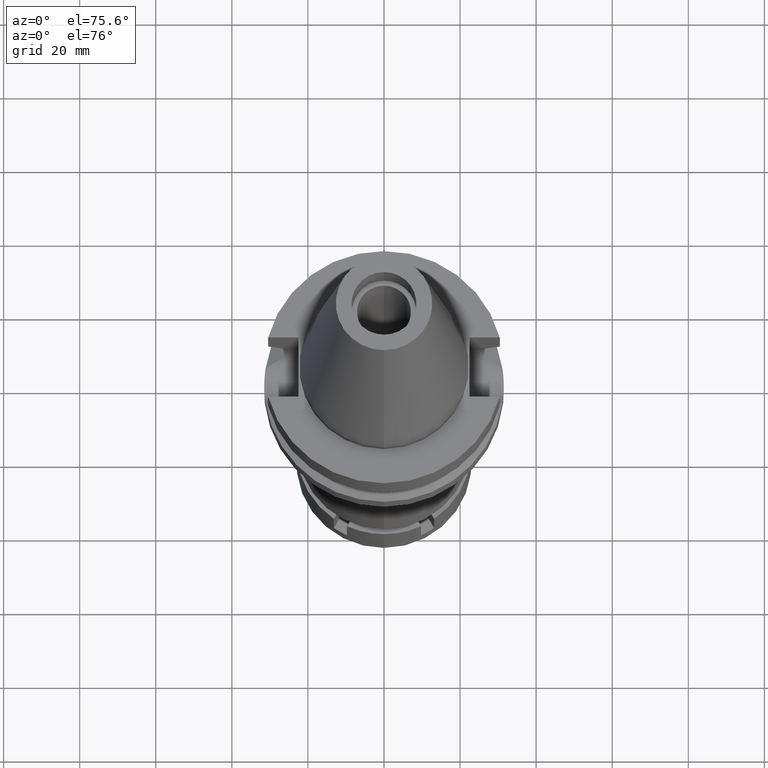
[diagram: clean part render]
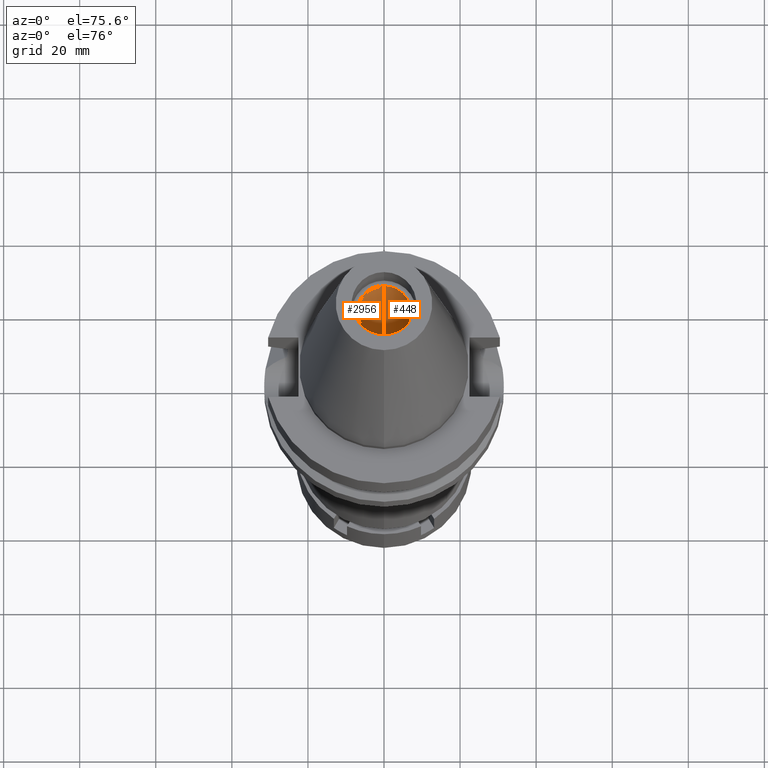
[diagram: same view with one multi-face feature highlighted, each face labeled with its STEP entity id]
A machine part, auxiliary view. The highlighted faces form ONE feature: a constant-radius fillet chain: 2 tangent blend faces with common blend radius 7.1 mm. The faces share edges in the B-rep.
Their STEP definitions:
[1] entity #448 (Cylinder):
#4 = CYLINDRICAL_SURFACE ( 'NONE', #1915, 7.100000000000000533 ) ;
#283 = CIRCLE ( 'NONE', #3342, 7.100000000000000533 ) ;
#305 = EDGE_CURVE ( 'NONE', #3173, #2120, #283, .T. ) ;
#448 = ADVANCED_FACE ( 'NONE', ( #1517 ), #4, .F. ) ;
#464 = DIRECTION ( 'NONE',  ( 0.0000000000000000000, 0.0000000000000000000, 1.000000000000000000 ) ) ;
#472 = EDGE_LOOP ( 'NONE', ( #747, #1699, #1610, #2240 ) ) ;
#477 = CARTESIAN_POINT ( 'NONE',  ( 0.0000000000000000000, 7.100000000000000533, 0.0000000000000000000 ) ) ;
#747 = ORIENTED_EDGE ( 'NONE', *, *, #3011, .F. ) ;
#804 = DIRECTION ( 'NONE',  ( 0.0000000000000000000, -1.000000000000000000, 0.0000000000000000000 ) ) ;
#1152 = CARTESIAN_POINT ( 'NONE',  ( 0.0000000000000000000, 2.125007125879999817E-14, 73.51999999999999602 ) ) ;
#1182 = VERTEX_POINT ( 'NONE', #1914 ) ;
#1224 = CARTESIAN_POINT ( 'NONE',  ( 0.0000000000000000000, 7.100000000000000533, 0.0000000000000000000 ) ) ;
#1381 = EDGE_CURVE ( 'NONE', #1182, #3173, #2245, .T. ) ;
#1448 = DIRECTION ( 'NONE',  ( 0.0000000000000000000, 0.0000000000000000000, -1.000000000000000000 ) ) ;
#1517 = FACE_OUTER_BOUND ( 'NONE', #472, .T. ) ;
#1610 = ORIENTED_EDGE ( 'NONE', *, *, #305, .T. ) ;
#1699 = ORIENTED_EDGE ( 'NONE', *, *, #1381, .T. ) ;
#1774 = VECTOR ( 'NONE', #3253, 1000.000000000000000 ) ;
#1837 = CARTESIAN_POINT ( 'NONE',  ( 0.0000000000000000000, 2.125007125879999817E-14, 56.39999999999999858 ) ) ;
#1914 = CARTESIAN_POINT ( 'NONE',  ( 0.0000000000000000000, -7.100000000000000533, 0.0000000000000000000 ) ) ;
#1915 = AXIS2_PLACEMENT_3D ( 'NONE', #1152, #1448, #2545 ) ;
#1934 = CARTESIAN_POINT ( 'NONE',  ( 0.0000000000000000000, -7.100000000000000533, 56.39999999999999858 ) ) ;
#2047 = VECTOR ( 'NONE', #2283, 1000.000000000000000 ) ;
#2120 = VERTEX_POINT ( 'NONE', #2804 ) ;
#2240 = ORIENTED_EDGE ( 'NONE', *, *, #3492, .F. ) ;
#2245 = LINE ( 'NONE', #3126, #2047 ) ;
#2283 = DIRECTION ( 'NONE',  ( 0.0000000000000000000, 0.0000000000000000000, 1.000000000000000000 ) ) ;
#2545 = DIRECTION ( 'NONE',  ( 0.0000000000000000000, -1.000000000000000000, 0.0000000000000000000 ) ) ;
#2606 = DIRECTION ( 'NONE',  ( 0.0000000000000000000, 0.0000000000000000000, 1.000000000000000000 ) ) ;
#2804 = CARTESIAN_POINT ( 'NONE',  ( 0.0000000000000000000, 7.100000000000000533, 56.39999999999999858 ) ) ;
#3011 = EDGE_CURVE ( 'NONE', #1182, #3421, #3358, .T. ) ;
#3126 = CARTESIAN_POINT ( 'NONE',  ( 0.0000000000000000000, -7.100000000000000533, 0.0000000000000000000 ) ) ;
#3135 = DIRECTION ( 'NONE',  ( 0.0000000000000000000, -1.000000000000000000, 0.0000000000000000000 ) ) ;
#3173 = VERTEX_POINT ( 'NONE', #1934 ) ;
#3253 = DIRECTION ( 'NONE',  ( 0.0000000000000000000, 0.0000000000000000000, 1.000000000000000000 ) ) ;
#3310 = CARTESIAN_POINT ( 'NONE',  ( 0.0000000000000000000, 2.125007125879999817E-14, 0.0000000000000000000 ) ) ;
#3342 = AXIS2_PLACEMENT_3D ( 'NONE', #1837, #2606, #3135 ) ;
#3358 = CIRCLE ( 'NONE', #3647, 7.100000000000000533 ) ;
#3421 = VERTEX_POINT ( 'NONE', #1224 ) ;
#3492 = EDGE_CURVE ( 'NONE', #3421, #2120, #3564, .T. ) ;
#3564 = LINE ( 'NONE', #477, #1774 ) ;
#3647 = AXIS2_PLACEMENT_3D ( 'NONE', #3310, #464, #804 ) ;
[2] entity #2956 (Cylinder):
#71 = EDGE_CURVE ( 'NONE', #2120, #3173, #1603, .T. ) ;
#401 = DIRECTION ( 'NONE',  ( 0.0000000000000000000, -1.000000000000000000, 0.0000000000000000000 ) ) ;
#443 = EDGE_CURVE ( 'NONE', #1182, #3421, #2799, .T. ) ;
#477 = CARTESIAN_POINT ( 'NONE',  ( 0.0000000000000000000, 7.100000000000000533, 0.0000000000000000000 ) ) ;
#608 = DIRECTION ( 'NONE',  ( 0.0000000000000000000, 0.0000000000000000000, -1.000000000000000000 ) ) ;
#760 = FACE_OUTER_BOUND ( 'NONE', #993, .T. ) ;
#910 = CARTESIAN_POINT ( 'NONE',  ( 0.0000000000000000000, 2.125007125879999817E-14, 56.39999999999999858 ) ) ;
#993 = EDGE_LOOP ( 'NONE', ( #3084, #3213, #2871, #1220 ) ) ;
#1125 = AXIS2_PLACEMENT_3D ( 'NONE', #2392, #2373, #2660 ) ;
#1182 = VERTEX_POINT ( 'NONE', #1914 ) ;
#1220 = ORIENTED_EDGE ( 'NONE', *, *, #3492, .T. ) ;
#1224 = CARTESIAN_POINT ( 'NONE',  ( 0.0000000000000000000, 7.100000000000000533, 0.0000000000000000000 ) ) ;
#1381 = EDGE_CURVE ( 'NONE', #1182, #3173, #2245, .T. ) ;
#1497 = AXIS2_PLACEMENT_3D ( 'NONE', #910, #2013, #2856 ) ;
#1603 = CIRCLE ( 'NONE', #1497, 7.100000000000000533 ) ;
#1774 = VECTOR ( 'NONE', #3253, 1000.000000000000000 ) ;
#1914 = CARTESIAN_POINT ( 'NONE',  ( 0.0000000000000000000, -7.100000000000000533, 0.0000000000000000000 ) ) ;
#1934 = CARTESIAN_POINT ( 'NONE',  ( 0.0000000000000000000, -7.100000000000000533, 56.39999999999999858 ) ) ;
#2013 = DIRECTION ( 'NONE',  ( 0.0000000000000000000, 0.0000000000000000000, 1.000000000000000000 ) ) ;
#2047 = VECTOR ( 'NONE', #2283, 1000.000000000000000 ) ;
#2096 = CYLINDRICAL_SURFACE ( 'NONE', #1125, 7.100000000000000533 ) ;
#2120 = VERTEX_POINT ( 'NONE', #2804 ) ;
#2245 = LINE ( 'NONE', #3126, #2047 ) ;
#2283 = DIRECTION ( 'NONE',  ( 0.0000000000000000000, 0.0000000000000000000, 1.000000000000000000 ) ) ;
#2373 = DIRECTION ( 'NONE',  ( 0.0000000000000000000, 0.0000000000000000000, -1.000000000000000000 ) ) ;
#2392 = CARTESIAN_POINT ( 'NONE',  ( 0.0000000000000000000, 2.125007125879999817E-14, 73.51999999999999602 ) ) ;
#2660 = DIRECTION ( 'NONE',  ( 0.0000000000000000000, -1.000000000000000000, 0.0000000000000000000 ) ) ;
#2799 = CIRCLE ( 'NONE', #3459, 7.100000000000000533 ) ;
#2804 = CARTESIAN_POINT ( 'NONE',  ( 0.0000000000000000000, 7.100000000000000533, 56.39999999999999858 ) ) ;
#2856 = DIRECTION ( 'NONE',  ( 0.0000000000000000000, 1.000000000000000000, 0.0000000000000000000 ) ) ;
#2867 = CARTESIAN_POINT ( 'NONE',  ( 0.0000000000000000000, 2.125007125879999817E-14, 0.0000000000000000000 ) ) ;
#2871 = ORIENTED_EDGE ( 'NONE', *, *, #443, .T. ) ;
#2956 = ADVANCED_FACE ( 'NONE', ( #760 ), #2096, .F. ) ;
#3084 = ORIENTED_EDGE ( 'NONE', *, *, #71, .T. ) ;
#3126 = CARTESIAN_POINT ( 'NONE',  ( 0.0000000000000000000, -7.100000000000000533, 0.0000000000000000000 ) ) ;
#3173 = VERTEX_POINT ( 'NONE', #1934 ) ;
#3213 = ORIENTED_EDGE ( 'NONE', *, *, #1381, .F. ) ;
#3253 = DIRECTION ( 'NONE',  ( 0.0000000000000000000, 0.0000000000000000000, 1.000000000000000000 ) ) ;
#3421 = VERTEX_POINT ( 'NONE', #1224 ) ;
#3459 = AXIS2_PLACEMENT_3D ( 'NONE', #2867, #608, #401 ) ;
#3492 = EDGE_CURVE ( 'NONE', #3421, #2120, #3564, .T. ) ;
#3564 = LINE ( 'NONE', #477, #1774 ) ;